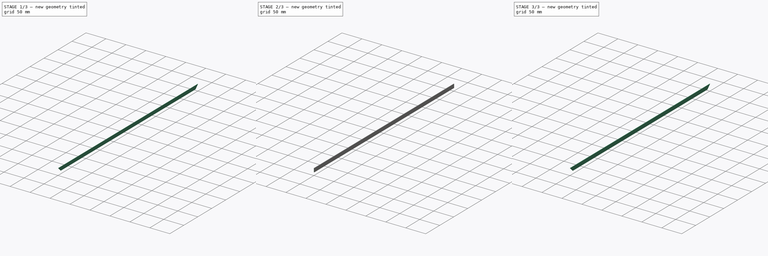
[diagram: build sequence overview — one tinted view per stage of 3, left to right]
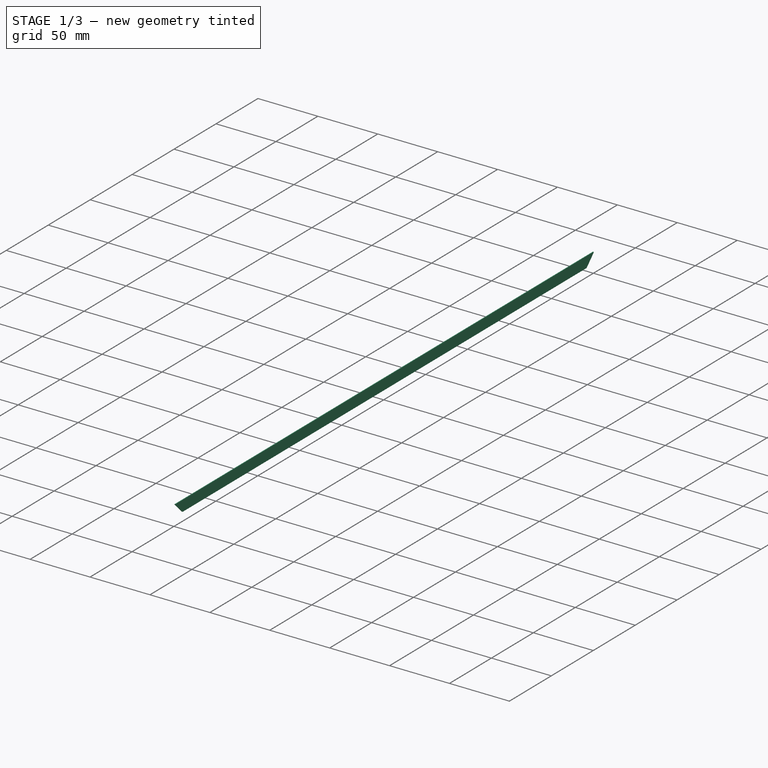
[diagram: stage 1 of 3 — iso view after this stage's code; geometry added in this stage tinted green]
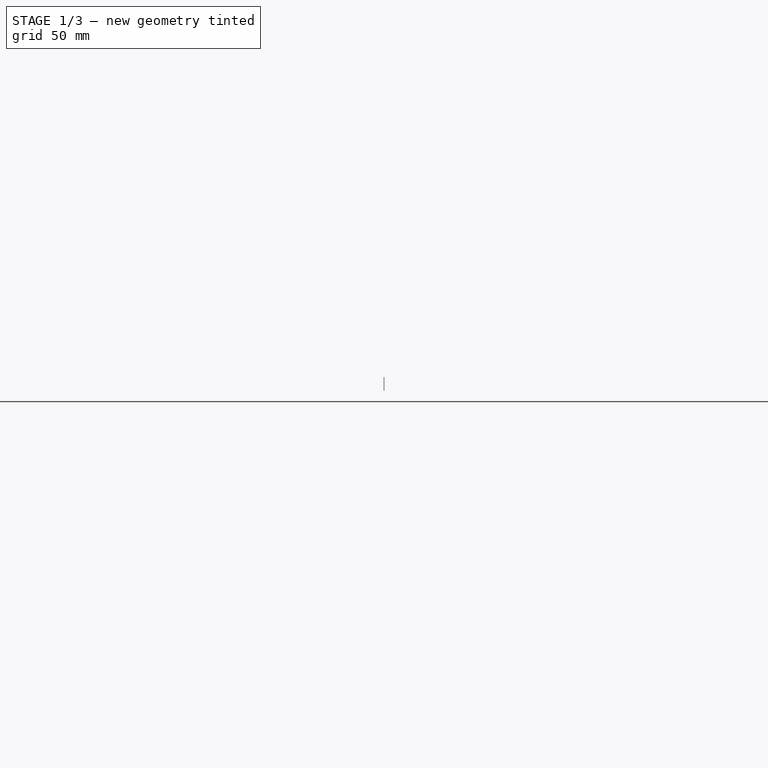
[diagram: stage 1 of 3 — front view after this stage's code; geometry added in this stage tinted green]
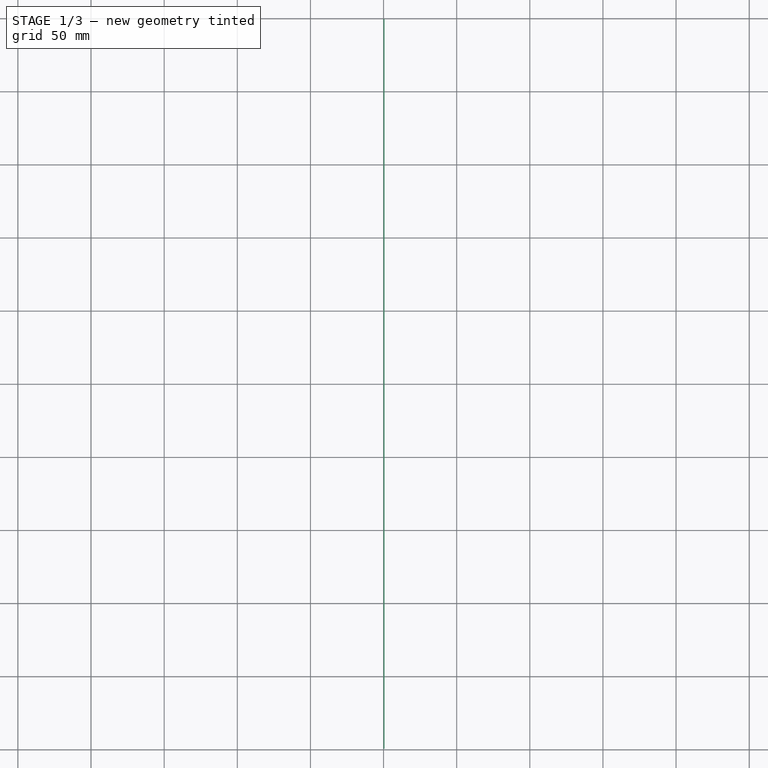
[diagram: stage 1 of 3 — top view after this stage's code; geometry added in this stage tinted green]
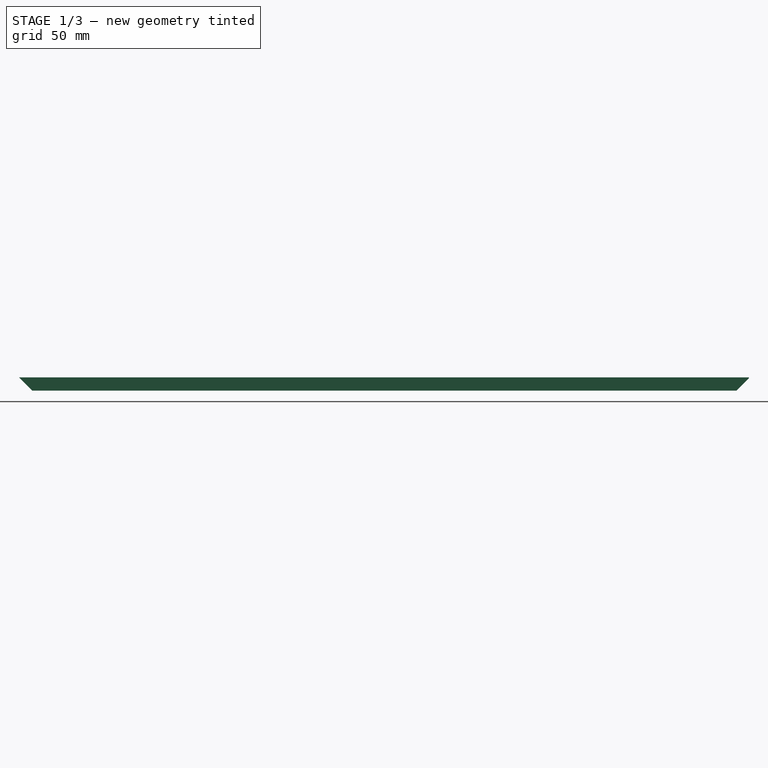
[diagram: stage 1 of 3 — right view after this stage's code; geometry added in this stage tinted green]
FCSTD DOCUMENT  (FreeCAD 0.21R)
Label: panneaux_solaires
License: All rights reserved
LicenseURL: http://en.wikipedia.org/wiki/All_rights_reserved
objects: Sketcher::SketchObject×6, PartDesign::Body×4, PartDesign::Pocket×3, PartDesign::Pad×2
note: 20 computed .brp shape members not serialized (recipe doc carries the construction recipe); baked Part::Feature solids carry a one-line shape summary decoded from their .brp

FEATURE [PartDesign::Body] Body  label="cadre gauche alu"
  Group = -> [Sketch001,Pad,Sketch,Pocket,Sketch002,Pocket001]
  Origin = -> Origin
  Placement = pos=(0,0,0) rot=(0,-1,0;1.5708rad)
  Tip = -> Pocket001
FEATURE [PartDesign::Body] Body002  label="percage pour rivet 7340a 2/3mm de structure"
  Origin = -> Origin002
FEATURE [Sketcher::SketchObject] Sketch006
  FullyConstrained = false
  MapMode = 5
  Support = -> [XY_Plane003]
  sketch-geometry (57):
    g0: Circle CenterX=-4.75 CenterY=-487.35 CenterZ=0 NormalX=0 NormalY=0 NormalZ=1 AngleXU=0 Radius=1.05
    g1: Circle CenterX=-4.78458 CenterY=-477.25 CenterZ=0 NormalX=0 NormalY=0 NormalZ=1 AngleXU=0 Radius=1.05
    g2: Circle CenterX=-4.7832 CenterY=-457.05 CenterZ=0 NormalX=0 NormalY=0 NormalZ=1 AngleXU=0 Radius=1.05
    g3: Circle CenterX=-4.75 CenterY=-467.15 CenterZ=0 NormalX=0 NormalY=0 NormalZ=1 AngleXU=0 Radius=1.05
    g4: Circle CenterX=-4.78182 CenterY=-416.65 CenterZ=0 NormalX=0 NormalY=0 NormalZ=1 AngleXU=0 Radius=1.05
    g5: Circle CenterX=-4.74862 CenterY=-426.75 CenterZ=0 NormalX=0 NormalY=0 NormalZ=1 AngleXU=0 Radius=1.05
    g6: Circle CenterX=-4.7832 CenterY=-436.85 CenterZ=0 NormalX=0 NormalY=0 NormalZ=1 AngleXU=0 Radius=1.05
    g7: Circle CenterX=-4.75 CenterY=-446.95 CenterZ=0 NormalX=0 NormalY=0 NormalZ=1 AngleXU=0 Radius=1.05
    g8: Circle CenterX=-4.78044 CenterY=-335.85 CenterZ=0 NormalX=0 NormalY=0 NormalZ=1 AngleXU=0 Radius=1.05
    g9: Circle CenterX=-4.74724 CenterY=-345.95 CenterZ=0 NormalX=0 NormalY=0 NormalZ=1 AngleXU=0 Radius=1.05
    g10: Circle CenterX=-4.78182 CenterY=-356.05 CenterZ=0 NormalX=0 NormalY=0 NormalZ=1 AngleXU=0 Radius=1.05
    g11: Circle CenterX=-4.74862 CenterY=-366.15 CenterZ=0 NormalX=0 NormalY=0 NormalZ=1 AngleXU=0 Radius=1.05
    g12: Circle CenterX=-4.78182 CenterY=-376.25 CenterZ=0 NormalX=0 NormalY=0 NormalZ=1 AngleXU=0 Radius=1.05
    g13: Circle CenterX=-4.74862 CenterY=-386.35 CenterZ=0 NormalX=0 NormalY=0 NormalZ=1 AngleXU=0 Radius=1.05
    g14: Circle CenterX=-4.7832 CenterY=-396.45 CenterZ=0 NormalX=0 NormalY=0 NormalZ=1 AngleXU=0 Radius=1.05
    g15: Circle CenterX=-4.75 CenterY=-406.55 CenterZ=0 NormalX=0 NormalY=0 NormalZ=1 AngleXU=0 Radius=1.05
    g16: Circle CenterX=-4.77906 CenterY=-174.25 CenterZ=0 NormalX=0 NormalY=0 NormalZ=1 AngleXU=0 Radius=1.05
    g17: Circle CenterX=-4.74586 CenterY=-184.35 CenterZ=0 NormalX=0 NormalY=0 NormalZ=1 AngleXU=0 Radius=1.05
    g18: Circle CenterX=-4.78044 CenterY=-194.45 CenterZ=0 NormalX=0 NormalY=0 NormalZ=1 AngleXU=0 Radius=1.05
    g19: Circle CenterX=-4.74724 CenterY=-204.55 CenterZ=0 NormalX=0 NormalY=0 NormalZ=1 AngleXU=0 Radius=1.05
    g20: Circle CenterX=-4.78044 CenterY=-214.65 CenterZ=0 NormalX=0 NormalY=0 NormalZ=1 AngleXU=0 Radius=1.05
    g21: Circle CenterX=-4.74724 CenterY=-224.75 CenterZ=0 NormalX=0 NormalY=0 NormalZ=1 AngleXU=0 Radius=1.05
    g22: Circle CenterX=-4.78182 CenterY=-234.85 CenterZ=0 NormalX=0 NormalY=0 NormalZ=1 AngleXU=0 Radius=1.05
    g23: Circle CenterX=-4.74862 CenterY=-244.95 CenterZ=0 NormalX=0 NormalY=0 NormalZ=1 AngleXU=0 Radius=1.05
    g24: Circle CenterX=-4.78044 CenterY=-255.05 CenterZ=0 NormalX=0 NormalY=0 NormalZ=1 AngleXU=0 Radius=1.05
    g25: Circle CenterX=-4.74724 CenterY=-265.15 CenterZ=0 NormalX=0 NormalY=0 NormalZ=1 AngleXU=0 Radius=1.05
    g26: Circle CenterX=-4.78182 CenterY=-275.25 CenterZ=0 NormalX=0 NormalY=0 NormalZ=1 AngleXU=0 Radius=1.05
    g27: Circle CenterX=-4.74862 CenterY=-285.35 CenterZ=0 NormalX=0 NormalY=0 NormalZ=1 AngleXU=0 Radius=1.05
    g28: Circle CenterX=-4.78182 CenterY=-295.45 CenterZ=0 NormalX=0 NormalY=0 NormalZ=1 AngleXU=0 Radius=1.05
    g29: Circle CenterX=-4.74862 CenterY=-305.55 CenterZ=0 NormalX=0 NormalY=0 NormalZ=1 AngleXU=0 Radius=1.05
    g30: Circle CenterX=-4.7832 CenterY=-315.65 CenterZ=0 NormalX=0 NormalY=0 NormalZ=1 AngleXU=0 Radius=1.05
    g31: Circle CenterX=-4.75 CenterY=-325.75 CenterZ=0 NormalX=0 NormalY=0 NormalZ=1 AngleXU=0 Radius=1.05
    g32: LineSegment StartX=-9.50289 StartY=-500 StartZ=0 EndX=-0.002891 EndY=-500 EndZ=0
    g33: Circle CenterX=-4.7431 CenterY=-63.15 CenterZ=0 NormalX=0 NormalY=0 NormalZ=1 AngleXU=0 Radius=1.05
    g34: Circle CenterX=-4.77768 CenterY=-73.25 CenterZ=0 NormalX=0 NormalY=0 NormalZ=1 AngleXU=0 Radius=1.05
    g35: Circle CenterX=-4.74448 CenterY=-83.35 CenterZ=0 NormalX=0 NormalY=0 NormalZ=1 AngleXU=0 Radius=1.05
    g36: Circle CenterX=-4.77768 CenterY=-93.45 CenterZ=0 NormalX=0 NormalY=0 NormalZ=1 AngleXU=0 Radius=1.05
    g37: Circle CenterX=-4.74448 CenterY=-103.55 CenterZ=0 NormalX=0 NormalY=0 NormalZ=1 AngleXU=0 Radius=1.05
    g38: Circle CenterX=-4.77906 CenterY=-113.65 CenterZ=0 NormalX=0 NormalY=0 NormalZ=1 AngleXU=0 Radius=1.05
    g39: Circle CenterX=-4.74586 CenterY=-123.75 CenterZ=0 NormalX=0 NormalY=0 NormalZ=1 AngleXU=0 Radius=1.05
    g40: Circle CenterX=-4.77768 CenterY=-133.85 CenterZ=0 NormalX=0 NormalY=0 NormalZ=1 AngleXU=0 Radius=1.05
    g41: Circle CenterX=-4.74448 CenterY=-143.95 CenterZ=0 NormalX=0 NormalY=0 NormalZ=1 AngleXU=0 Radius=1.05
    g42: Circle CenterX=-4.77906 CenterY=-154.05 CenterZ=0 NormalX=0 NormalY=0 NormalZ=1 AngleXU=0 Radius=1.05
    g43: Circle CenterX=-4.74586 CenterY=-164.15 CenterZ=0 NormalX=0 NormalY=0 NormalZ=1 AngleXU=0 Radius=1.05
    g44: Circle CenterX=-4.75289 CenterY=-12.65 CenterZ=0 NormalX=0 NormalY=0 NormalZ=1 AngleXU=0 Radius=1.05
    g45: Circle CenterX=-4.74173 CenterY=-22.75 CenterZ=0 NormalX=0 NormalY=0 NormalZ=1 AngleXU=0 Radius=1.05
    g46: Circle CenterX=-4.70853 CenterY=-32.85 CenterZ=0 NormalX=0 NormalY=0 NormalZ=1 AngleXU=0 Radius=1.05
    g47: Circle CenterX=-4.74173 CenterY=-42.95 CenterZ=0 NormalX=0 NormalY=0 NormalZ=1 AngleXU=0 Radius=1.05
    g48: Circle CenterX=-4.70853 CenterY=-53.05 CenterZ=0 NormalX=0 NormalY=0 NormalZ=1 AngleXU=0 Radius=1.05
    g49: LineSegment StartX=-0.002891 StartY=0 StartZ=0 EndX=-9.50289 EndY=1.1e-05 EndZ=0
    g50: LineSegment StartX=-4.75 StartY=-487.35 StartZ=0 EndX=-4.75 EndY=-500 EndZ=0
    g51: LineSegment StartX=-4.75 StartY=-487.35 StartZ=0 EndX=0 EndY=-487.35 EndZ=0
    g52: LineSegment StartX=-0.002891 StartY=-500 StartZ=0 EndX=-0.002891 EndY=0 EndZ=0
    g53: LineSegment StartX=-9.50289 StartY=1.1e-05 StartZ=0 EndX=-9.50289 EndY=-500 EndZ=0
    g54: LineSegment StartX=-4.75289 StartY=-12.65 StartZ=0 EndX=-4.75289 EndY=0.155 EndZ=0
    g55: LineSegment StartX=-4.75289 StartY=-12.65 StartZ=0 EndX=-0.002891 EndY=-12.65 EndZ=0
    g56: LineSegment StartX=-4.74173 StartY=-22.75 StartZ=0 EndX=-0.002891 EndY=-22.75 EndZ=0
  constraints (117):
    c: Diameter(g0) = 2.1
    c: Equal(g0,g1) = 2.1
    c: DistanceY(g0,g1) = 10.1
    c: Equal(g0,g3) = 2.1
    c: Equal(g3,g2) = 2.1
    c: DistanceY(g3,g2) = 10.1
    c: Equal(g0,g7) = 2.1
    c: Equal(g7,g6) = 2.1
    c: DistanceY(g7,g6) = 10.1
    c: Equal(g7,g5) = 2.1
    c: Equal(g5,g4) = 2.1
    c: DistanceY(g5,g4) = 10.1
    c: Equal(g0,g15) = 2.1
    c: Equal(g15,g14) = 2.1
    c: DistanceY(g15,g14) = 10.1
    c: Equal(g15,g13) = 2.1
    c: Equal(g13,g12) = 2.1
    c: DistanceY(g13,g12) = 10.1
    c: Equal(g15,g11) = 2.1
    c: Equal(g11,g10) = 2.1
    c: DistanceY(g11,g10) = 10.1
    c: Equal(g11,g9) = 2.1
    c: Equal(g9,g8) = 2.1
    c: DistanceY(g9,g8) = 10.1
    c: Equal(g0,g31) = 2.1
    c: Equal(g31,g30) = 2.1
    c: DistanceY(g31,g30) = 10.1
    c: Equal(g31,g29) = 2.1
    c: Equal(g29,g28) = 2.1
    c: DistanceY(g29,g28) = 10.1
    c: Equal(g31,g27) = 2.1
    c: Equal(g27,g26) = 2.1
    c: DistanceY(g27,g26) = 10.1
    c: Equal(g27,g25) = 2.1
    c: Equal(g25,g24) = 2.1
    c: DistanceY(g25,g24) = 10.1
    c: Equal(g31,g23) = 2.1
    c: Equal(g23,g22) = 2.1
    c: DistanceY(g23,g22) = 10.1
    c: Equal(g23,g21) = 2.1
    c: Equal(g21,g20) = 2.1
    c: DistanceY(g21,g20) = 10.1
    c: Equal(g23,g19) = 2.1
    c: Equal(g19,g18) = 2.1
    c: DistanceY(g19,g18) = 10.1
    c: Equal(g19,g17) = 2.1
    c: Equal(g17,g16) = 2.1
    c: DistanceY(g17,g16) = 10.1
    c: Equal(g43,g42) = 2.1
    c: DistanceY(g43,g42) = 10.1
    c: Equal(g43,g41) = 2.1
    c: Equal(g41,g40) = 2.1
    c: DistanceY(g41,g40) = 10.1
    c: Equal(g39,g38) = 2.1
    c: DistanceY(g39,g38) = 10.1
    c: Equal(g39,g37) = 2.1
    c: Equal(g37,g36) = 2.1
    c: DistanceY(g37,g36) = 10.1
    c: Equal(g39,g35) = 2.1
    c: Equal(g35,g34) = 2.1
    c: DistanceY(g35,g34) = 10.1
    c: Equal(g35,g33) = 2.1
    c: Equal(g48,g47) = 2.1
    c: DistanceY(g48,g47) = 10.1
    c: Equal(g46,g45) = 2.1
    c: DistanceY(g46,g45) = 10.1
    c: Equal(g46,g44) = 2.1
    c: DistanceY(g1,g3) = 10.1
    c: DistanceY(g2,g7) = 10.1
    c: DistanceY(g6,g5) = 10.1
    c: DistanceY(g4,g15) = 10.1
    c: DistanceY(g14,g13) = 10.1
    c: DistanceY(g8,g31) = 10.1
    c: DistanceY(g30,g29) = 10.1
    c: DistanceY(g28,g27) = 10.1
    c: DistanceY(g26,g25) = 10.1
    c: DistanceY(g24,g23) = 10.1
    c: DistanceY(g22,g21) = 10.1
    c: DistanceY(g20,g19) = 10.1
    c: DistanceY(g18,g17) = 10.1
    c: DistanceY(g16,g43) = 10.1
    c: DistanceY(g40,g39) = 10.1
    c: DistanceY(g38,g37) = 10.1
    c: DistanceY(g36,g35) = 10.1
    c: DistanceY(g34,g33) = 10.1
    c: DistanceY(g47,g46) = 10.1
    c: DistanceY(g33,g48) = 10.1
    c: DistanceY(g45,g44) = 10.1
    c: Coincident(g50,g0)
    c: Vertical(g50)
    c: DistanceY(g50,g50) = 12.65
    c: Coincident(g51,g50)
    c: PointOnObject(g51,g-2)
    c: Horizontal(g51)
    c: DistanceY(g12,g11) = 10.1
    c: DistanceY(g10,g9) = 10.1
    c: DistanceY(g42,g41) = 10.1
    c: DistanceX(g32,g32) = 9.5
    c: DistanceY(g32,g49) = 500
    c: DistanceX(g51,g51) = 4.75
    c: Coincident(g52,g32)
    c: Coincident(g52,g49)
    c: Vertical(g52)
    c: Coincident(g53,g49)
    c: Coincident(g53,g32)
    c: Vertical(g53)
    c: Coincident(g54,g44)
    c: Vertical(g54)
    c: DistanceY(g54,g54) = 12.805
    c: Coincident(g55,g54)
    c: PointOnObject(g55,g52)
    c: Horizontal(g55)
    c: DistanceX(g55,g55) = 4.75
    c: DistanceY(g53,g53) = 500
    c: Coincident(g56,g45)
    c: PointOnObject(g56,g52)
    c: Horizontal(g56)
FEATURE [Sketcher::SketchObject] Sketch007
  FullyConstrained = false
  MapMode = 5
  Placement = pos=(0,-0.5,0) rot=(1,0,0;1.5708rad)
  sketch-geometry (8):
    g0: LineSegment StartX=0.6 StartY=9 StartZ=0 EndX=0.6 EndY=0 EndZ=0
    g1: LineSegment StartX=0.1 StartY=0 StartZ=0 EndX=0.1 EndY=8.9 EndZ=0
    g2: LineSegment StartX=0.1 StartY=8.9 StartZ=0 EndX=0.5 EndY=8.9 EndZ=0
    g3: LineSegment StartX=0.5 StartY=8.9 StartZ=0 EndX=0.5 EndY=0 EndZ=0
    g4: LineSegment StartX=0.6 StartY=0 StartZ=0 EndX=0.5 EndY=0 EndZ=0
    g5: LineSegment StartX=0 StartY=9 StartZ=0 EndX=0.6 EndY=9 EndZ=0
    g6: LineSegment StartX=0.1 StartY=0 StartZ=0 EndX=0 EndY=0 EndZ=0
    g7: LineSegment StartX=0 StartY=0 StartZ=0 EndX=0 EndY=9 EndZ=0
  constraints (21):
    c: Vertical(g0)
    c: DistanceY(g0,g0) = 9
    c: PointOnObject(g1,g-1)
    c: Vertical(g1)
    c: Coincident(g2,g1)
    c: Horizontal(g2)
    c: Coincident(g3,g2)
    c: Vertical(g3)
    c: DistanceX(g2,g2) = 0.4
    c: DistanceX(g-1,g1) = 0.1
    c: DistanceY(g1,g1) = 8.9
    c: Coincident(g4,g0)
    c: Coincident(g4,g3)
    c: Horizontal(g4)
    c: Coincident(g5,g0)
    c: Horizontal(g5)
    c: Coincident(g6,g1)
    c: Coincident(g6,g-1)
    c: Coincident(g7,g6)
    c: Coincident(g7,g5)
    c: Vertical(g7)
FEATURE [PartDesign::Pad] Pad001
  Direction = (0,-1,2e-16)
  Length = 499
  Length2 = 10
  Placement = pos=(0,-0.5,0) rot=(1,0,0;1.5708rad)
  Profile = -> Sketch007
  ReferenceAxis = -> Sketch007 [N_Axis]
  Type = 0
FEATURE [Sketcher::SketchObject] Sketch008
  FullyConstrained = false
  MapMode = 5
  Placement = pos=(0,0,0) rot=(0.57735,0.57735,0.57735;2.0944rad)
  Support = -> [YZ_Plane001]
  sketch-geometry (6):
    g0: LineSegment StartX=-499.7 StartY=9.2 StartZ=0 EndX=-499.7 EndY=-0.3 EndZ=0
    g1: LineSegment StartX=-499.7 StartY=-0.3 StartZ=0 EndX=-490.2 EndY=-0.3 EndZ=0
    g2: LineSegment StartX=-490.2 StartY=-0.3 StartZ=0 EndX=-499.7 EndY=9.2 EndZ=0
    g3: LineSegment StartX=0.3 StartY=-0.3 StartZ=0 EndX=-9.2 EndY=-0.3 EndZ=0
    g4: LineSegment StartX=0.3 StartY=-0.3 StartZ=0 EndX=0.3 EndY=9.2 EndZ=0
    g5: LineSegment StartX=0.3 StartY=9.2 StartZ=0 EndX=-9.2 EndY=-0.3 EndZ=0
  constraints (12):
    c: Vertical(g0)
    c: Horizontal(g1)
    c: Coincident(g2,g1)
    c: Coincident(g2,g0)
    c: DistanceY(g0,g0) = 9.5
    c: DistanceX(g1,g1) = 9.5
    c: Coincident(g4,g3)
    c: Vertical(g4)
    c: Coincident(g5,g3)
    c: Angle(g4,g3) = 1.5708
    c: DistanceY(g4,g4) = 9.5
    c: DistanceX(g3,g3) = 9.5
FEATURE [PartDesign::Pocket] Pocket002
  BaseFeature = -> Pad001
  Direction = (-1,2e-16,-3e-16)
  Length = 5
  Length2 = 5
  Placement = pos=(0,-0.5,0) rot=(1,0,0;1.5708rad)
  Profile = -> Sketch008
  ReferenceAxis = -> Sketch008 [N_Axis]
  Reversed = true
  Type = 1
FEATURE [PartDesign::Body] Body001  label="join caoutchou"
  Group = -> [Sketch007,Pad001,Sketch008,Pocket002]
  Origin = -> Origin001
  Placement = pos=(-0.3,-0.3,0.2) rot=(0,-1,0;1.5708rad)
  Tip = -> Pocket002
FEATURE [PartDesign::Body] Body003  label="Corps"
  Group = -> [Sketch006]
  Origin = -> Origin003
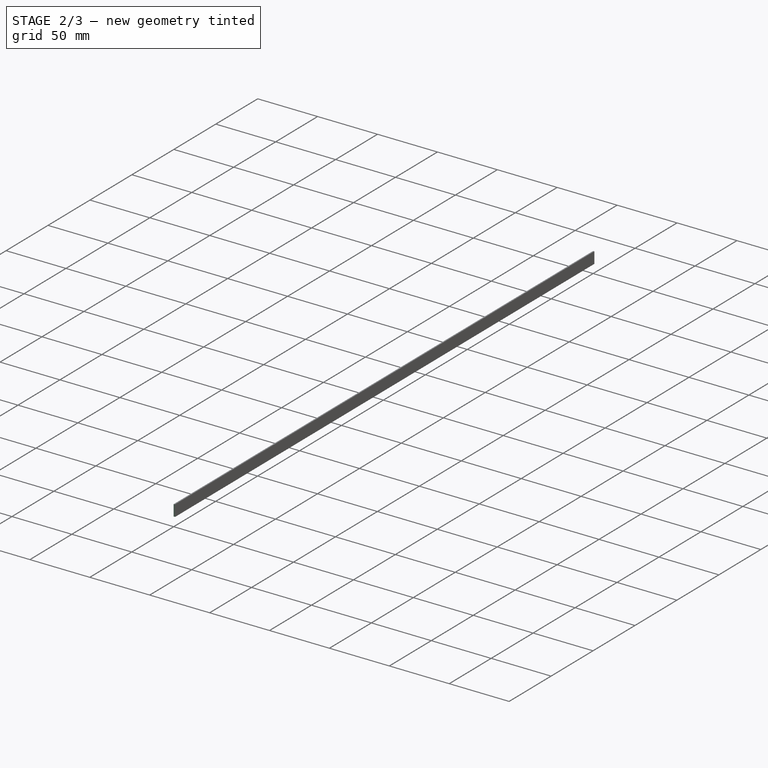
[diagram: stage 2 of 3 — iso view after this stage's code; geometry added in this stage tinted green]
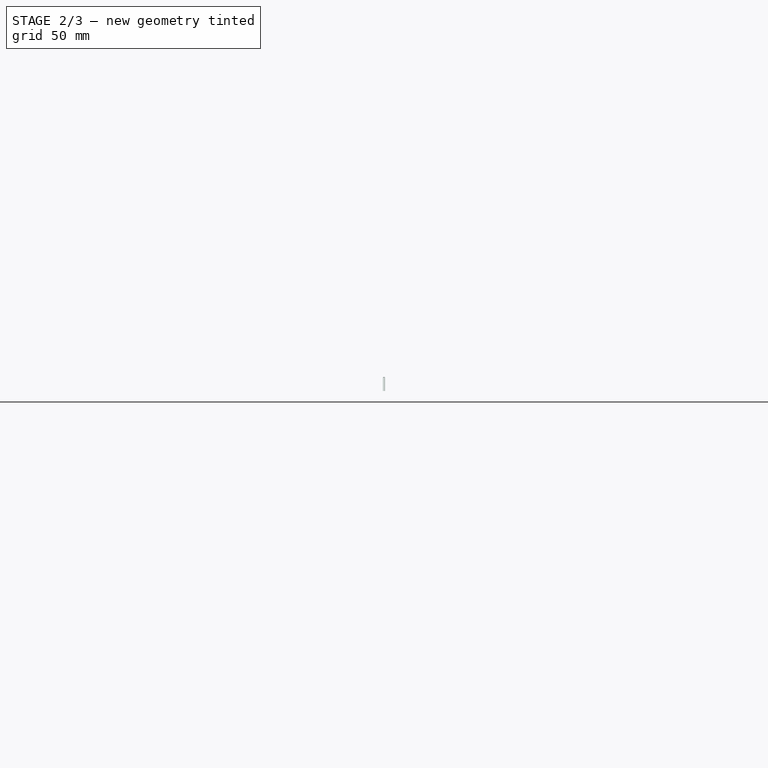
[diagram: stage 2 of 3 — front view after this stage's code; geometry added in this stage tinted green]
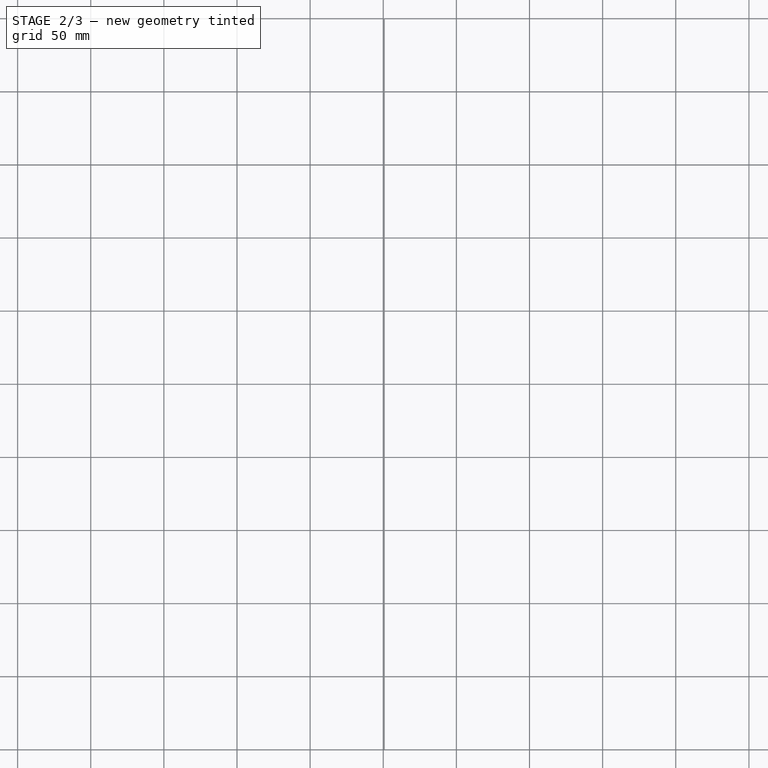
[diagram: stage 2 of 3 — top view after this stage's code; geometry added in this stage tinted green]
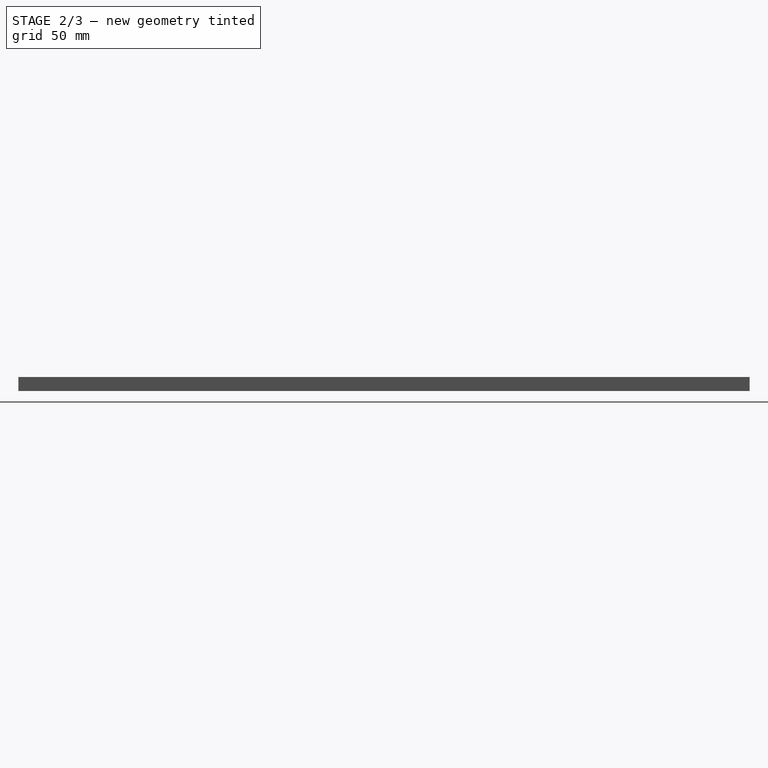
[diagram: stage 2 of 3 — right view after this stage's code; geometry added in this stage tinted green]
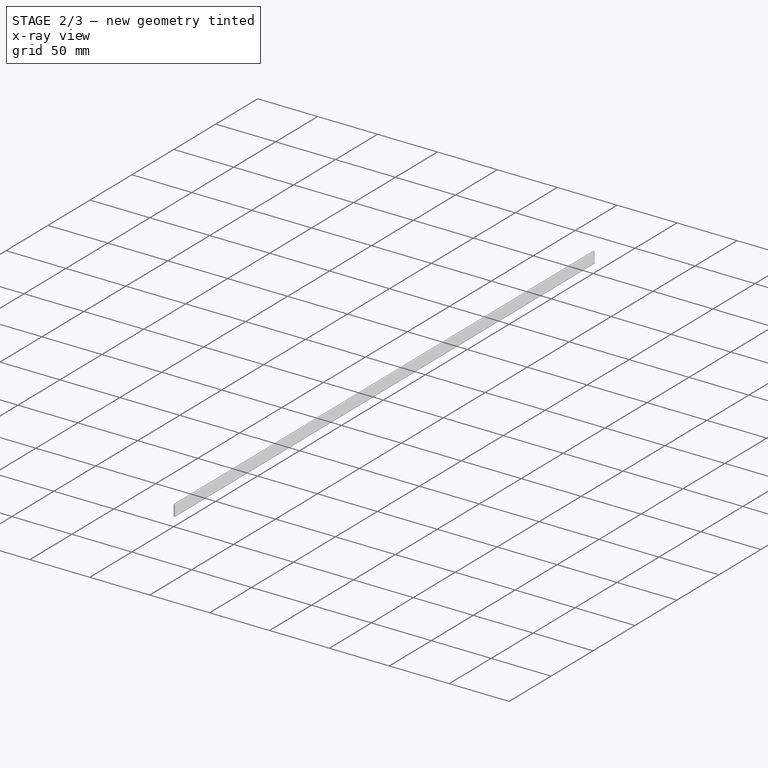
[diagram: stage 2 of 3 — x-ray composite at the iso view; earlier geometry ghosted, this stage's added geometry solid]
FEATURE [Sketcher::SketchObject] Sketch001
  FullyConstrained = true
  MapMode = 5
  Placement = pos=(0,0,0) rot=(1,0,0;1.5708rad)
  Support = -> [XZ_Plane]
  sketch-geometry (8):
    g0: LineSegment StartX=0 StartY=0 StartZ=0 EndX=0 EndY=9.5 EndZ=0
    g1: LineSegment StartX=0 StartY=9.5 StartZ=0 EndX=1 EndY=9.5 EndZ=0
    g2: LineSegment StartX=1 StartY=9.5 StartZ=0 EndX=1 EndY=0 EndZ=0
    g3: LineSegment StartX=1 StartY=0 StartZ=0 EndX=0.8 EndY=0 EndZ=0
    g4: LineSegment StartX=0 StartY=0 StartZ=0 EndX=0.2 EndY=0 EndZ=0
    g5: LineSegment StartX=0.2 StartY=0 StartZ=0 EndX=0.2 EndY=9.3 EndZ=0
    g6: LineSegment StartX=0.2 StartY=9.3 StartZ=0 EndX=0.8 EndY=9.3 EndZ=0
    g7: LineSegment StartX=0.8 StartY=9.3 StartZ=0 EndX=0.8 EndY=0 EndZ=0
  constraints (23):
    c: Coincident(g0,g-1)
    c: PointOnObject(g0,g-2)
    c: Coincident(g1,g0)
    c: Horizontal(g1)
    c: Coincident(g2,g1)
    c: Vertical(g2)
    c: Coincident(g3,g2)
    c: Horizontal(g3)
    c: DistanceY(g2,g2) = 9.5
    c: DistanceY(g0,g0) = 9.5
    c: Coincident(g4,g0)
    c: PointOnObject(g4,g-1)
    c: Coincident(g5,g4)
    c: Vertical(g5)
    c: Coincident(g6,g5)
    c: Horizontal(g6)
    c: Coincident(g7,g6)
    c: Coincident(g7,g3)
    c: Vertical(g7)
    c: DistanceX(g1,g1) = 1
    c: DistanceX(g6,g6) = 0.6
    c: DistanceX(g4,g4) = 0.2
    c: DistanceY(g5,g5) = 9.3
FEATURE [PartDesign::Pad] Pad
  Direction = (0,-1,-2e-16)
  Length = 500
  Length2 = 10
  Placement = pos=(0,0,0) rot=(1,0,0;1.5708rad)
  Profile = -> Sketch001
  ReferenceAxis = -> Sketch001 [N_Axis]
  Type = 0
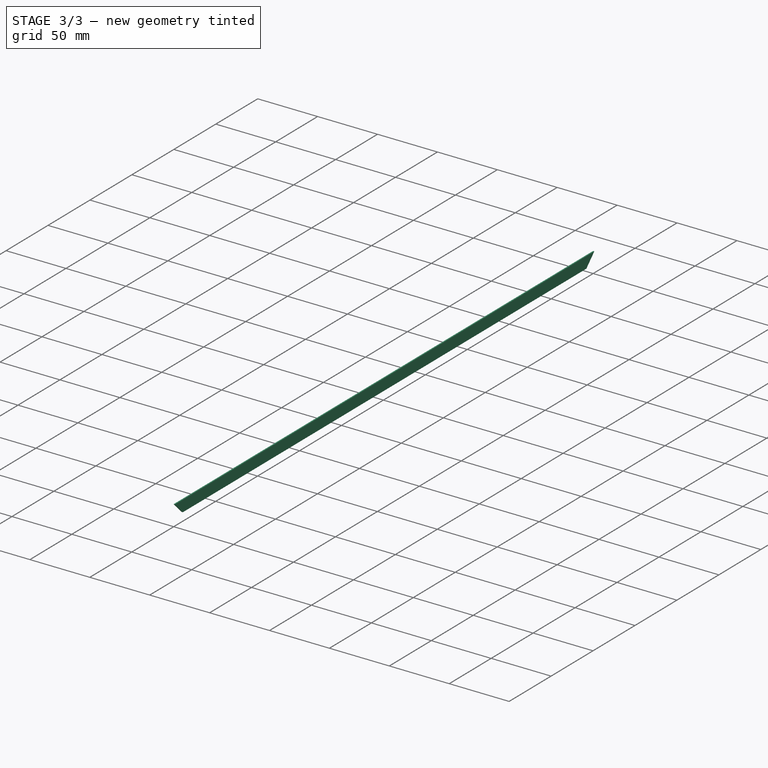
[diagram: stage 3 of 3 — iso view after this stage's code; geometry added in this stage tinted green]
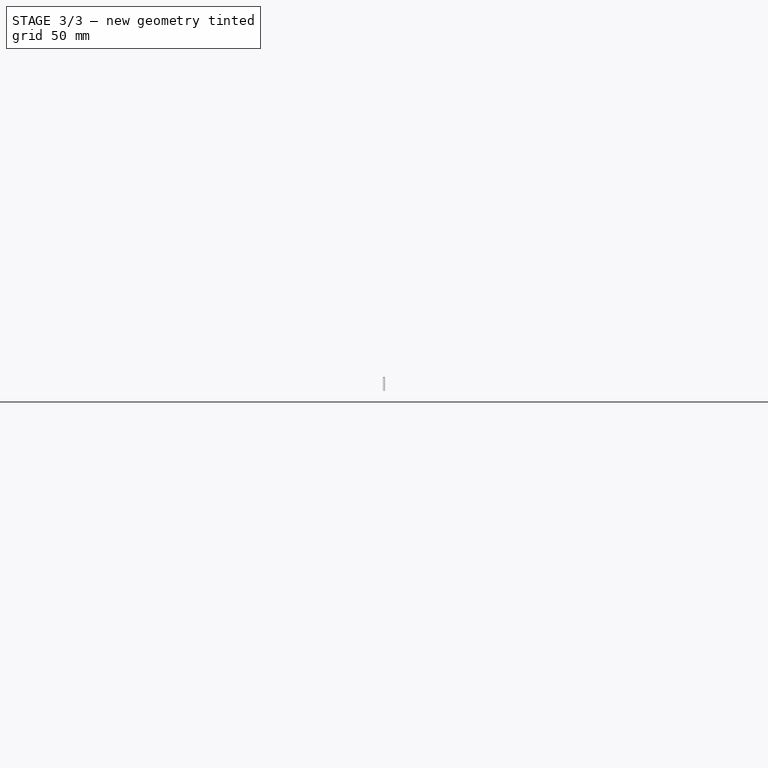
[diagram: stage 3 of 3 — front view after this stage's code; geometry added in this stage tinted green]
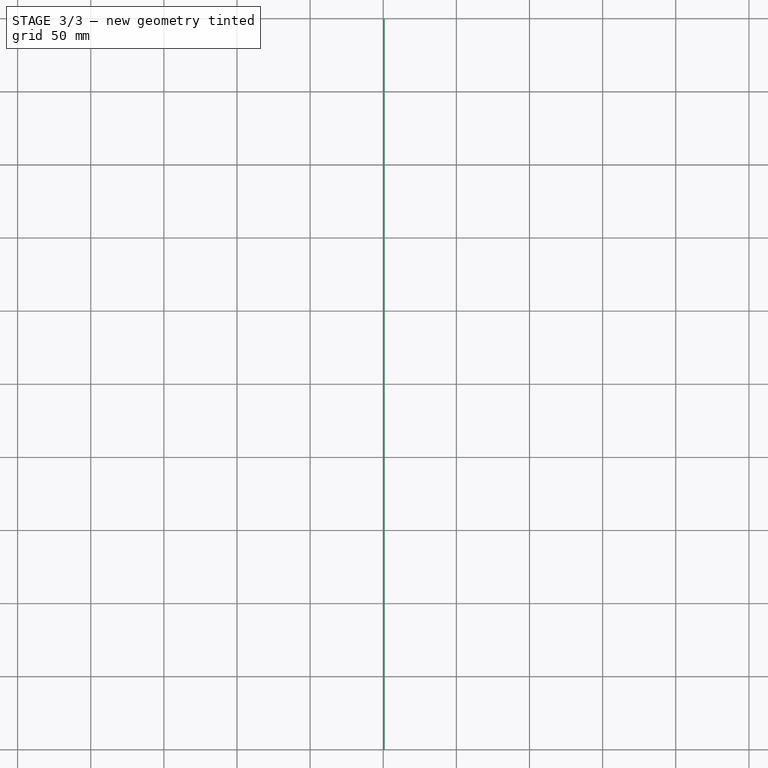
[diagram: stage 3 of 3 — top view after this stage's code; geometry added in this stage tinted green]
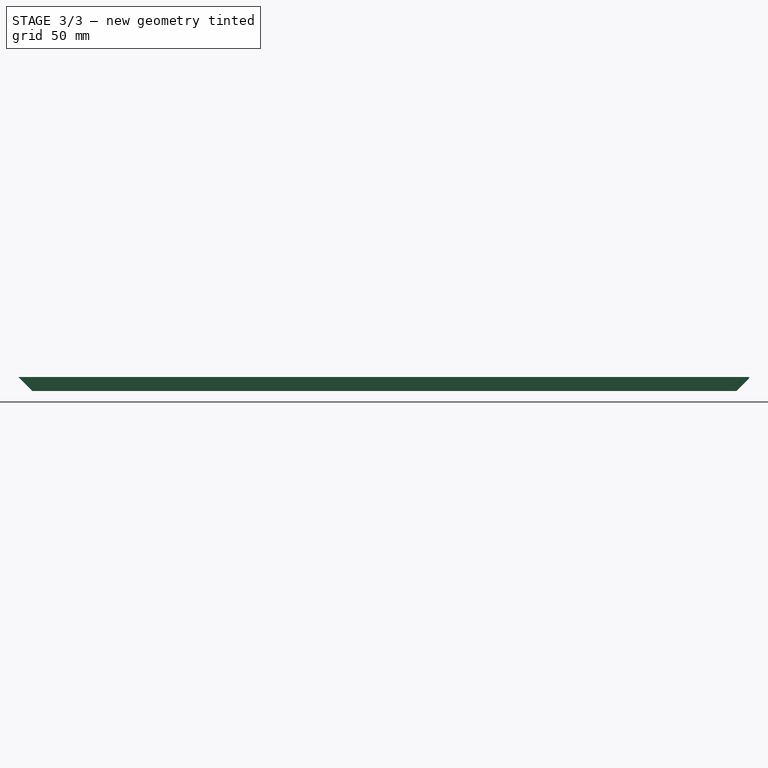
[diagram: stage 3 of 3 — right view after this stage's code; geometry added in this stage tinted green]
FEATURE [Sketcher::SketchObject] Sketch
  FullyConstrained = false
  MapMode = 5
  Placement = pos=(0,0,0) rot=(0.57735,0.57735,0.57735;2.0944rad)
  Support = -> [YZ_Plane]
  sketch-geometry (3):
    g0: LineSegment StartX=0 StartY=-2.13969e-08 StartZ=0 EndX=0 EndY=9.5 EndZ=0
    g1: LineSegment StartX=-1.06984e-08 StartY=9.5 StartZ=0 EndX=-9.5 EndY=0 EndZ=0
    g2: LineSegment StartX=-9.5 StartY=0 StartZ=0 EndX=0 EndY=0 EndZ=0
  constraints (5):
    c: Vertical(g0)
    c: Horizontal(g2)
    c: DistanceX(g2,g2) = 9.5
    c: DistanceY(g0,g0) = 9.5
    c: Angle(g2,g1) = 0.785398
FEATURE [PartDesign::Pocket] Pocket
  BaseFeature = -> Pad
  Direction = (-1,2e-16,-3e-16)
  Length = 5
  Length2 = 5
  Placement = pos=(0,0,0) rot=(1,0,0;1.5708rad)
  Profile = -> Sketch
  ReferenceAxis = -> Sketch [N_Axis]
  Reversed = true
  Type = 1
FEATURE [Sketcher::SketchObject] Sketch002
  FullyConstrained = false
  MapMode = 5
  Placement = pos=(0,0,0) rot=(0.57735,0.57735,0.57735;2.0944rad)
  Support = -> [YZ_Plane]
  sketch-geometry (3):
    g0: LineSegment StartX=-500 StartY=0 StartZ=0 EndX=-490.5 EndY=0 EndZ=0
    g1: LineSegment StartX=-500 StartY=0 StartZ=0 EndX=-500 EndY=9.5 EndZ=0
    g2: LineSegment StartX=-490.5 StartY=0 StartZ=0 EndX=-500 EndY=9.5 EndZ=0
  constraints (7):
    c: Horizontal(g0)
    c: DistanceX(g0,g0) = 9.5
    c: Coincident(g1,g0)
    c: Vertical(g1)
    c: Coincident(g2,g0)
    c: Coincident(g2,g1)
    c: DistanceY(g1,g1) = 9.5
FEATURE [PartDesign::Pocket] Pocket001  label="cadre découoé"
  BaseFeature = -> Pocket
  Direction = (-1,2e-16,-3e-16)
  Length = 5
  Length2 = 5
  Placement = pos=(0,0,0) rot=(1,0,0;1.5708rad)
  Profile = -> Sketch002
  ReferenceAxis = -> Sketch002 [N_Axis]
  Reversed = true
  Type = 1
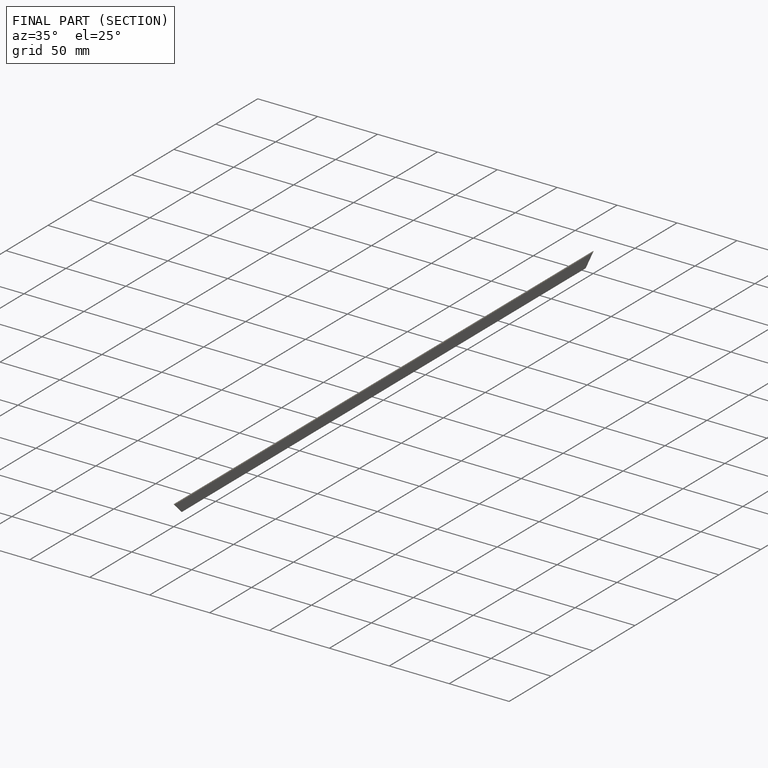
[diagram: finished part — half-section view (interior)]
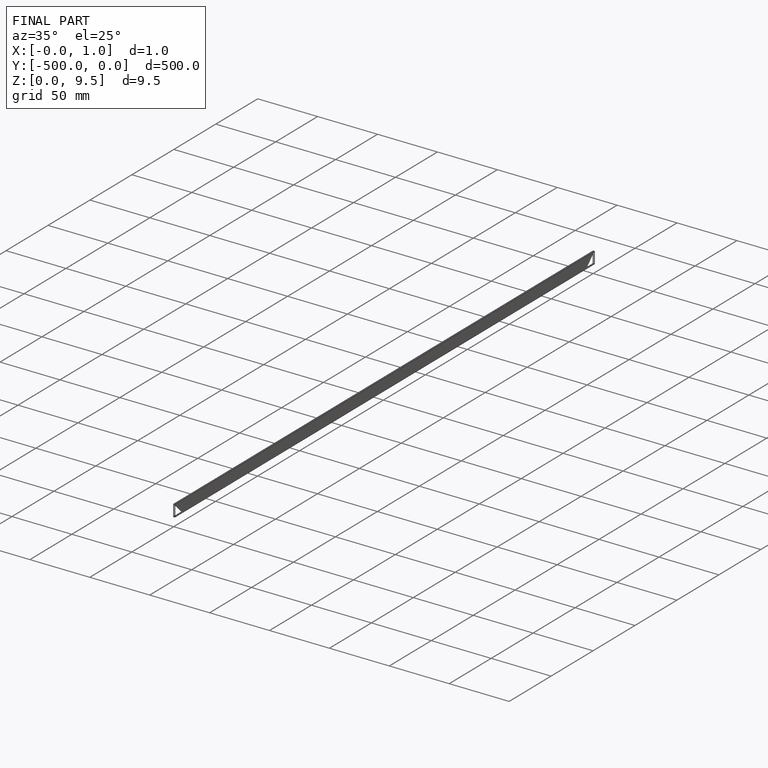
[diagram: finished part — iso view with bounding-box wireframe]
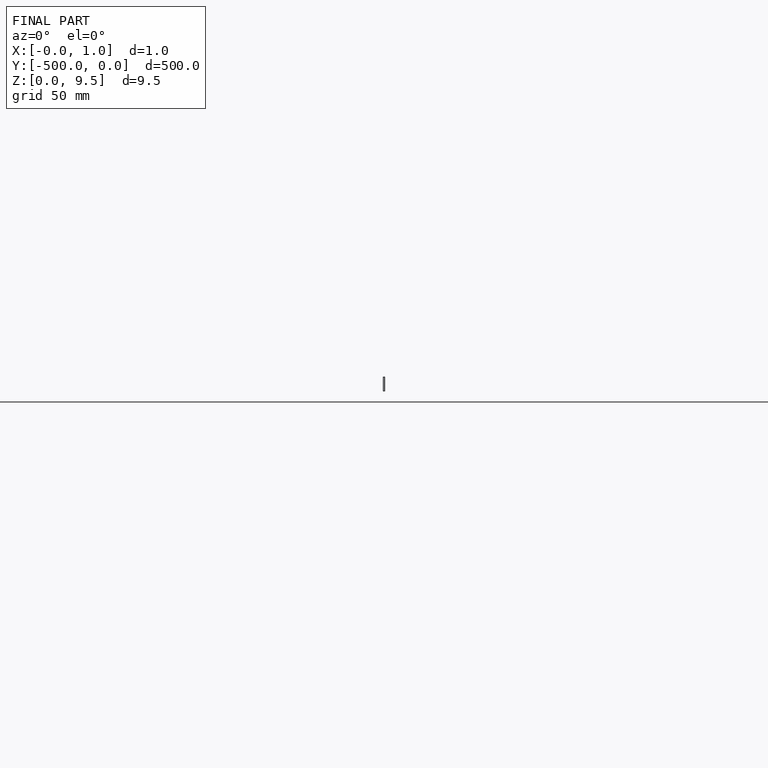
[diagram: finished part — front view with bounding-box wireframe]
